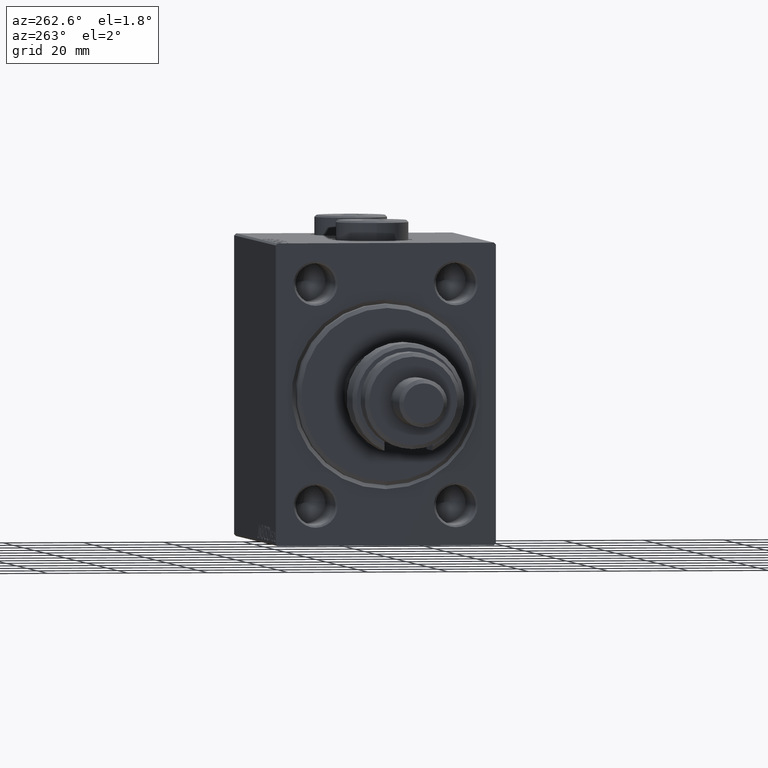
[diagram: clean part render]
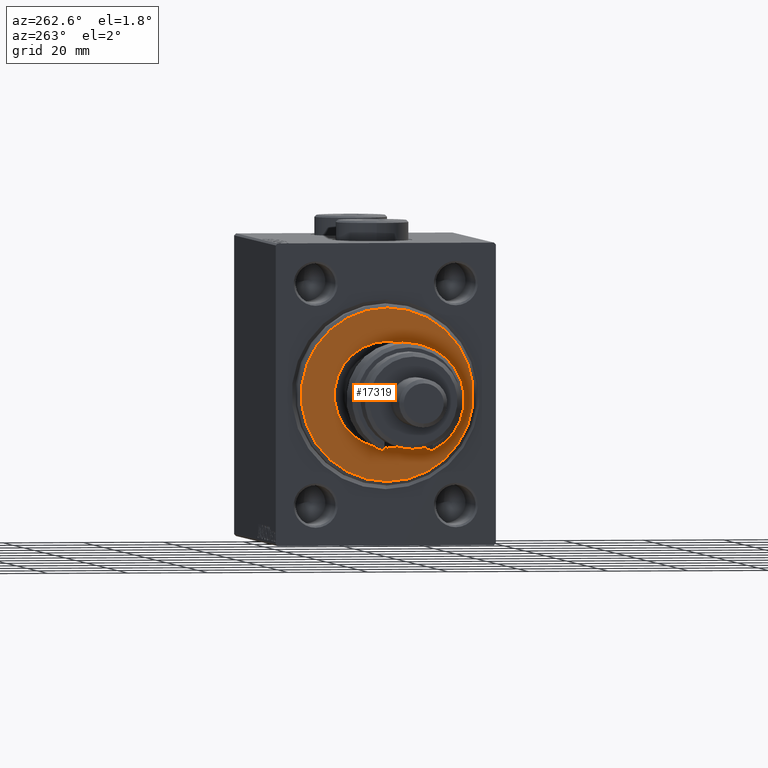
[diagram: same view with one face highlighted and labeled with its STEP entity id]
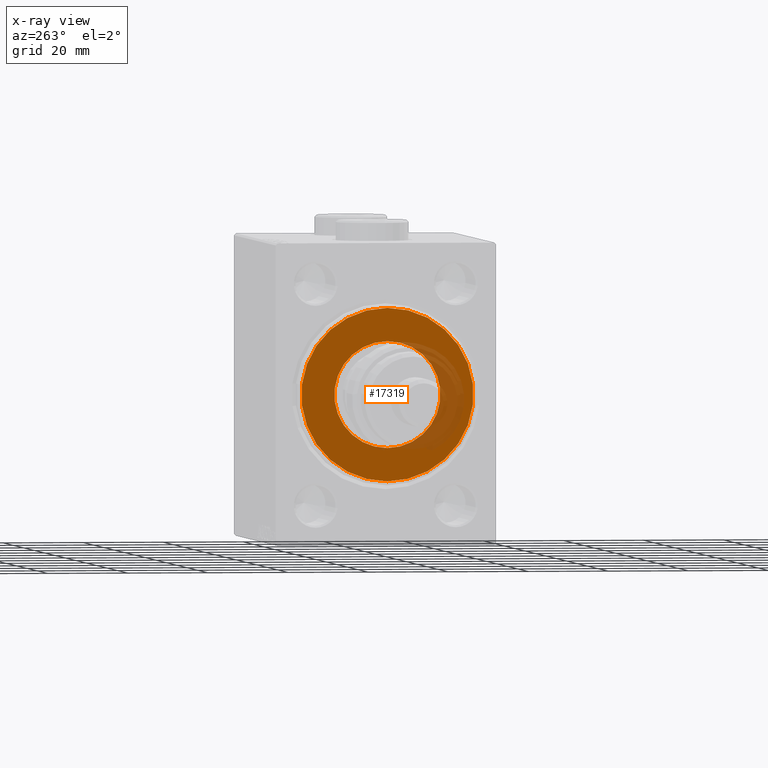
[diagram: x-ray of the same camera — body ghosted, the highlighted face saturated]
A machine part, auxiliary view. The second image highlights one B-rep face of the part: STEP entity #17319.
The next image is the same camera in x-ray: the body ghosted, the highlighted face saturated — about 18% of this face is hidden behind the body in this view.
In plain terms, the highlighted planar face has unit normal (-1, 0, 0).
Its self-contained STEP definition (entity closure, byte-faithful):
#1074 = EDGE_CURVE ( 'NONE', #38998, #46591, #33613, .T. ) ;
#2075 = VERTEX_POINT ( 'NONE', #31740 ) ;
#2169 = CARTESIAN_POINT ( 'NONE',  ( 3.000000000000000000, 0.000000000000000000, 21.50000000000000355 ) ) ;
#4318 = DIRECTION ( 'NONE',  ( 0.000000000000000000, 0.000000000000000000, -1.000000000000000000 ) ) ;
#7547 = EDGE_CURVE ( 'NONE', #2075, #38333, #39354, .T. ) ;
#9709 = EDGE_LOOP ( 'NONE', ( #9961, #33863 ) ) ;
#9961 = ORIENTED_EDGE ( 'NONE', *, *, #13633, .F. ) ;
#11943 = CARTESIAN_POINT ( 'NONE',  ( 3.000000000000000000, 0.000000000000000000, 0.000000000000000000 ) ) ;
#13271 = CIRCLE ( 'NONE', #19506, 21.50000000000000355 ) ;
#13633 = EDGE_CURVE ( 'NONE', #38333, #2075, #35125, .T. ) ;
#14593 = FACE_OUTER_BOUND ( 'NONE', #42787, .T. ) ;
#14834 = EDGE_CURVE ( 'NONE', #46591, #38998, #13271, .T. ) ;
#17319 = ADVANCED_FACE ( 'NONE', ( #14593, #36414 ), #18496, .T. ) ;
#17782 = DIRECTION ( 'NONE',  ( 0.000000000000000000, 0.000000000000000000, -1.000000000000000000 ) ) ;
#18496 = PLANE ( 'NONE',  #28891 ) ;
#19506 = AXIS2_PLACEMENT_3D ( 'NONE', #25240, #30045, #40202 ) ;
#20018 = DIRECTION ( 'NONE',  ( 1.000000000000000000, 0.000000000000000000, 0.000000000000000000 ) ) ;
#23399 = AXIS2_PLACEMENT_3D ( 'NONE', #11943, #20018, #34962 ) ;
#23590 = CARTESIAN_POINT ( 'NONE',  ( 3.000000000000000000, 0.000000000000000000, -13.25000000000000178 ) ) ;
#24964 = DIRECTION ( 'NONE',  ( 0.000000000000000000, 0.000000000000000000, -1.000000000000000000 ) ) ;
#25240 = CARTESIAN_POINT ( 'NONE',  ( 3.000000000000000000, 0.000000000000000000, 0.000000000000000000 ) ) ;
#26587 = DIRECTION ( 'NONE',  ( 1.000000000000000000, -0.000000000000000000, 0.000000000000000000 ) ) ;
#28891 = AXIS2_PLACEMENT_3D ( 'NONE', #29524, #48358, #17782 ) ;
#29524 = CARTESIAN_POINT ( 'NONE',  ( 3.000000000000000000, 0.000000000000000000, 0.000000000000000000 ) ) ;
#30045 = DIRECTION ( 'NONE',  ( 1.000000000000000000, -0.000000000000000000, 0.000000000000000000 ) ) ;
#30268 = CARTESIAN_POINT ( 'NONE',  ( 3.000000000000000000, 0.000000000000000000, 0.000000000000000000 ) ) ;
#31740 = CARTESIAN_POINT ( 'NONE',  ( 3.000000000000000000, 1.622657008870243277E-15, 13.25000000000000178 ) ) ;
#33613 = CIRCLE ( 'NONE', #46161, 21.50000000000000355 ) ;
#33863 = ORIENTED_EDGE ( 'NONE', *, *, #7547, .F. ) ;
#34611 = AXIS2_PLACEMENT_3D ( 'NONE', #35524, #46767, #24964 ) ;
#34962 = DIRECTION ( 'NONE',  ( 0.000000000000000000, 0.000000000000000000, -1.000000000000000000 ) ) ;
#35125 = CIRCLE ( 'NONE', #23399, 13.25000000000000178 ) ;
#35524 = CARTESIAN_POINT ( 'NONE',  ( 3.000000000000000000, 0.000000000000000000, 0.000000000000000000 ) ) ;
#36414 = FACE_BOUND ( 'NONE', #9709, .T. ) ;
#38333 = VERTEX_POINT ( 'NONE', #23590 ) ;
#38998 = VERTEX_POINT ( 'NONE', #2169 ) ;
#39274 = ORIENTED_EDGE ( 'NONE', *, *, #14834, .T. ) ;
#39354 = CIRCLE ( 'NONE', #34611, 13.25000000000000178 ) ;
#40202 = DIRECTION ( 'NONE',  ( 0.000000000000000000, 0.000000000000000000, -1.000000000000000000 ) ) ;
#40735 = ORIENTED_EDGE ( 'NONE', *, *, #1074, .T. ) ;
#42787 = EDGE_LOOP ( 'NONE', ( #40735, #39274 ) ) ;
#46161 = AXIS2_PLACEMENT_3D ( 'NONE', #30268, #26587, #4318 ) ;
#46591 = VERTEX_POINT ( 'NONE', #48300 ) ;
#46767 = DIRECTION ( 'NONE',  ( 1.000000000000000000, 0.000000000000000000, 0.000000000000000000 ) ) ;
#48300 = CARTESIAN_POINT ( 'NONE',  ( 3.000000000000000000, 2.694222958124177598E-15, -21.50000000000000355 ) ) ;
#48358 = DIRECTION ( 'NONE',  ( 1.000000000000000000, -0.000000000000000000, 0.000000000000000000 ) ) ;